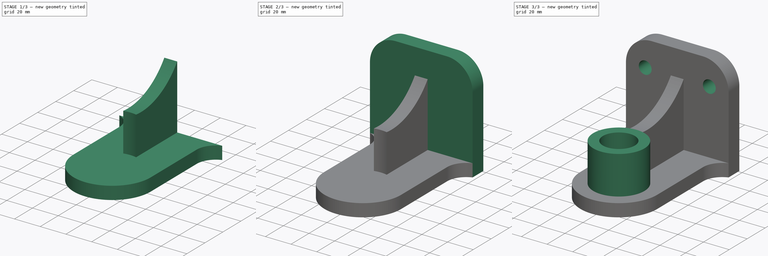
[diagram: build sequence overview — one tinted view per stage of 3, left to right]
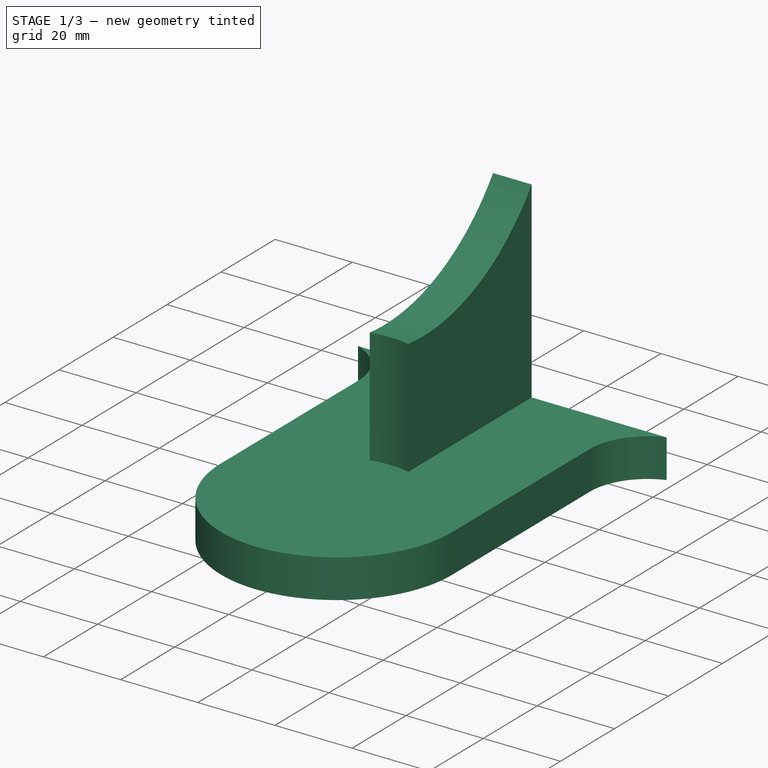
[diagram: stage 1 of 3 — iso view after this stage's code; geometry added in this stage tinted green]
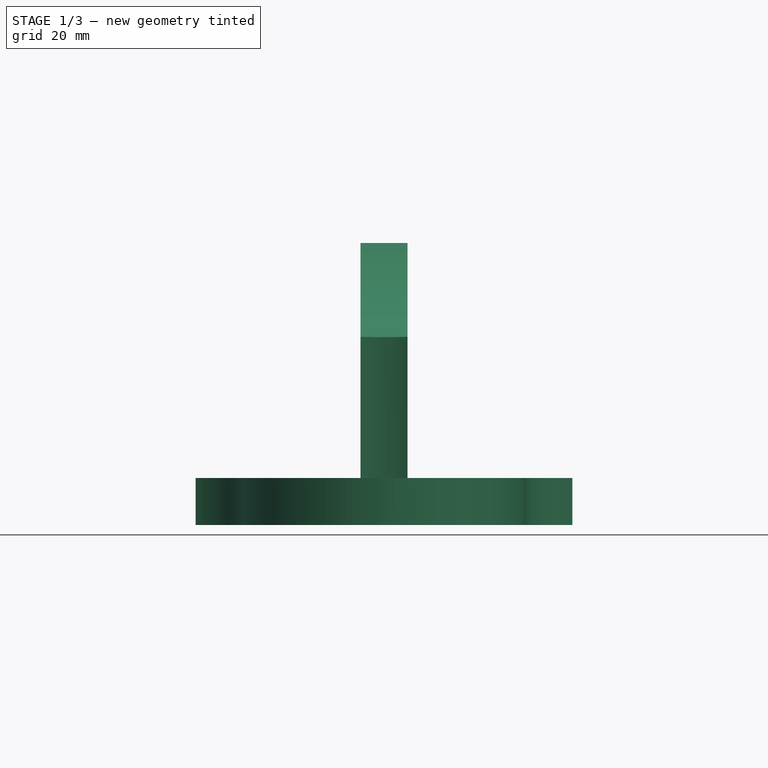
[diagram: stage 1 of 3 — front view after this stage's code; geometry added in this stage tinted green]
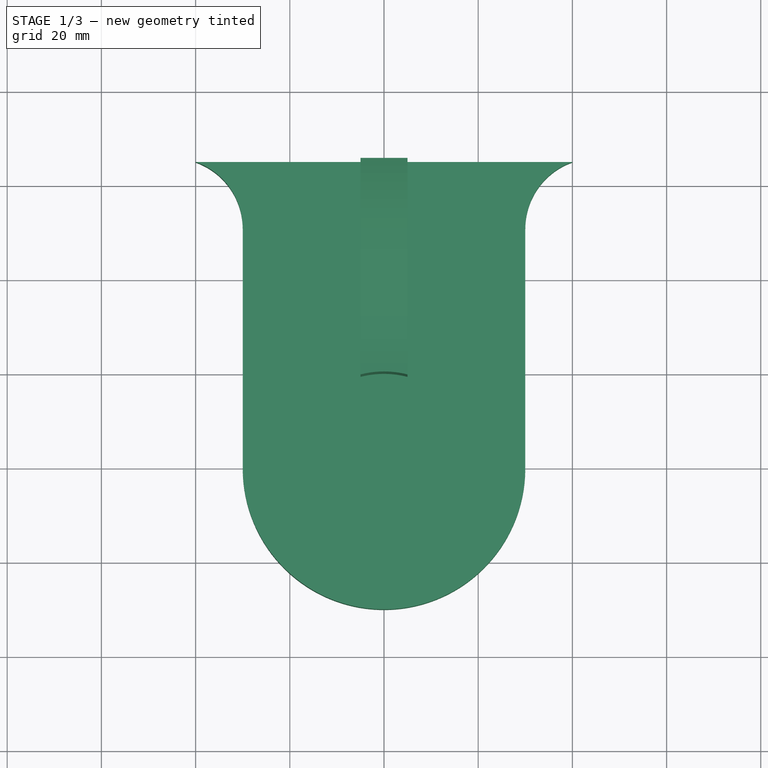
[diagram: stage 1 of 3 — top view after this stage's code; geometry added in this stage tinted green]
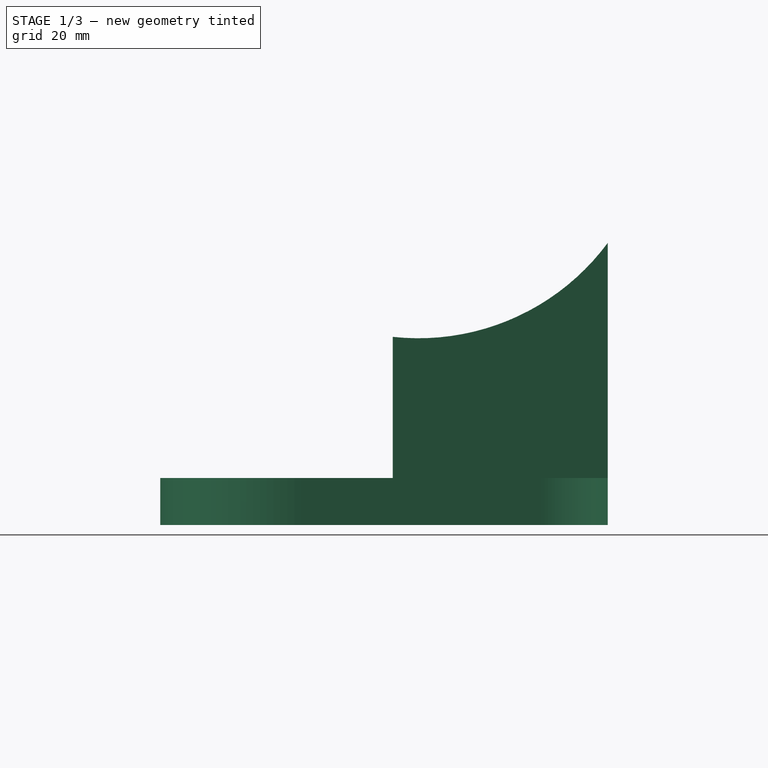
[diagram: stage 1 of 3 — right view after this stage's code; geometry added in this stage tinted green]
FCSTD DOCUMENT  (FreeCAD 0.16R)
Label: Fig 3.25 final
License: All rights reserved
LicenseURL: http://en.wikipedia.org/wiki/All_rights_reserved
objects: Sketcher::SketchObject×5, PartDesign::Pad×4, Part::Feature×2, PartDesign::Fillet×1, Part::Cut×1, Part::MultiFuse×1, PartDesign::Pocket×1
note: 20 computed .brp shape members not serialized (recipe doc carries the construction recipe); baked Part::Feature solids carry a one-line shape summary decoded from their .brp

FEATURE [Sketcher::SketchObject] Sketch
  sketch-geometry (7):
    g0: ArcOfCircle CenterX=0 CenterY=0 CenterZ=0 NormalX=0 NormalY=0 NormalZ=1 Radius=30 StartAngle=3.14159 EndAngle=6.28319
    g1: LineSegment [constr] StartX=0 StartY=0 StartZ=0 EndX=0 EndY=65 EndZ=0
    g2: LineSegment StartX=-40 StartY=65 StartZ=0 EndX=40 EndY=65 EndZ=0
    g3: ArcOfCircle CenterX=-45 CenterY=50.8579 CenterZ=0 NormalX=0 NormalY=0 NormalZ=1 Radius=15 StartAngle=2.339e-09 EndAngle=1.23096
    g4: ArcOfCircle CenterX=45 CenterY=50.8579 CenterZ=0 NormalX=0 NormalY=0 NormalZ=1 Radius=15 StartAngle=1.91063 EndAngle=3.14159
    g5: LineSegment StartX=-30 StartY=0 StartZ=0 EndX=-30 EndY=50.8579 EndZ=0
    g6: LineSegment StartX=30 StartY=0 StartZ=0 EndX=30 EndY=50.8578 EndZ=0
  constraints (23):
    c: Coincident(g0,g-1)
    c: PointOnObject(g0,g-1)
    c: PointOnObject(g0,g-1)
    c: Radius(g0) = 30
    c: Coincident(g1,g-1)
    c: Vertical(g1)
    c: DistanceY(g1,g1) = 65
    c: Horizontal(g2)
    c: DistanceX(g2,g2) = 80
    c: Symmetric(g2,g2,g-2)
    c: PointOnObject(g1,g2)
    c: Coincident(g4,g2)
    c: Radius(g4) = 15
    c: Radius(g3) = 15
    c: Coincident(g2,g3)
    c: Coincident(g5,g0)
    c: Coincident(g6,g0)
    c: Vertical(g6)
    c: Coincident(g4,g6)
    c: Coincident(g3,g5)
    c: Tangent(g5,g3)
    c: Tangent(g0,g5)
    c: Tangent(g6,g4)
FEATURE [PartDesign::Pad] Pad
  Length = 10
  Length2 = 100
  Sketch = -> Sketch
  Type = 0
FEATURE [Sketcher::SketchObject] Sketch003
  Placement = pos=(0,0,0) rot=(0.57735,0.57735,0.57735;2.0944rad)
  sketch-geometry (4):
    g0: LineSegment StartX=65 StartY=59.8961 StartZ=0 EndX=65 EndY=10 EndZ=0
    g1: LineSegment StartX=65 StartY=10 StartZ=0 EndX=19 EndY=10 EndZ=0
    g2: LineSegment StartX=19 StartY=10 StartZ=0 EndX=19 EndY=40 EndZ=0
    g3: ArcOfCircle CenterX=24.8238 CenterY=89.6597 CenterZ=0 NormalX=0 NormalY=0 NormalZ=1 Radius=50 StartAngle=4.59565 EndAngle=5.64558
  constraints (12):
    c: Vertical(g0)
    c: Coincident(g0,g1)
    c: Horizontal(g1)
    c: Coincident(g1,g2)
    c: Vertical(g2)
    c: DistanceX(g-1,g1) = 19
    c: DistanceX(g-1,g0) = 65
    c: DistanceY(g1,g2) = 30
    c: Coincident(g3,g0)
    c: Coincident(g3,g2)
    c: Radius(g3) = 50
    c: DistanceY(g-1,g1) = 10
FEATURE [PartDesign::Pad] Pad003
  Length = 10
  Length2 = 100
  Midplane = true
  Placement = pos=(0,0,0) rot=(0.57735,0.57735,0.57735;2.0944rad)
  Sketch = -> Sketch003
  Type = 0
FEATURE [Part::Feature] Pad002001  label="Pad004"
  shape: bbox 80 x 107 x 80 mm, 18 faces (baked)
FEATURE [Part::Cut] Cut
  Base = -> Pad003
  Tool = -> Pad002001
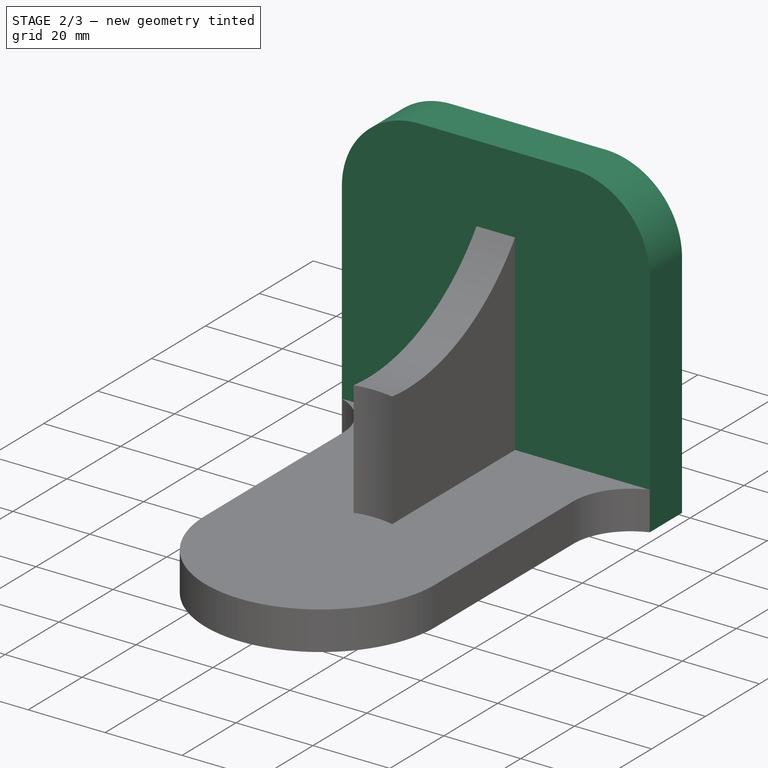
[diagram: stage 2 of 3 — iso view after this stage's code; geometry added in this stage tinted green]
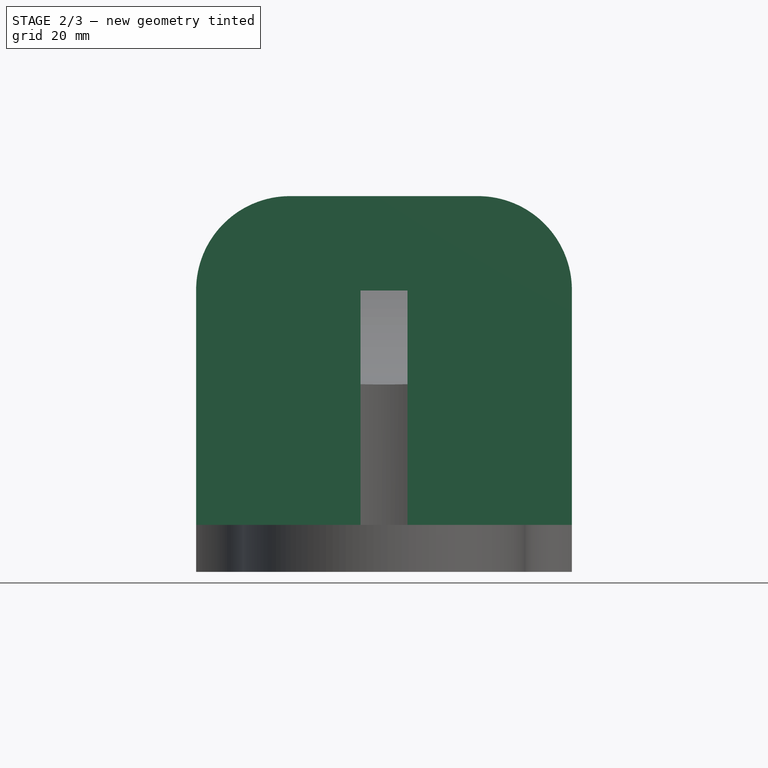
[diagram: stage 2 of 3 — front view after this stage's code; geometry added in this stage tinted green]
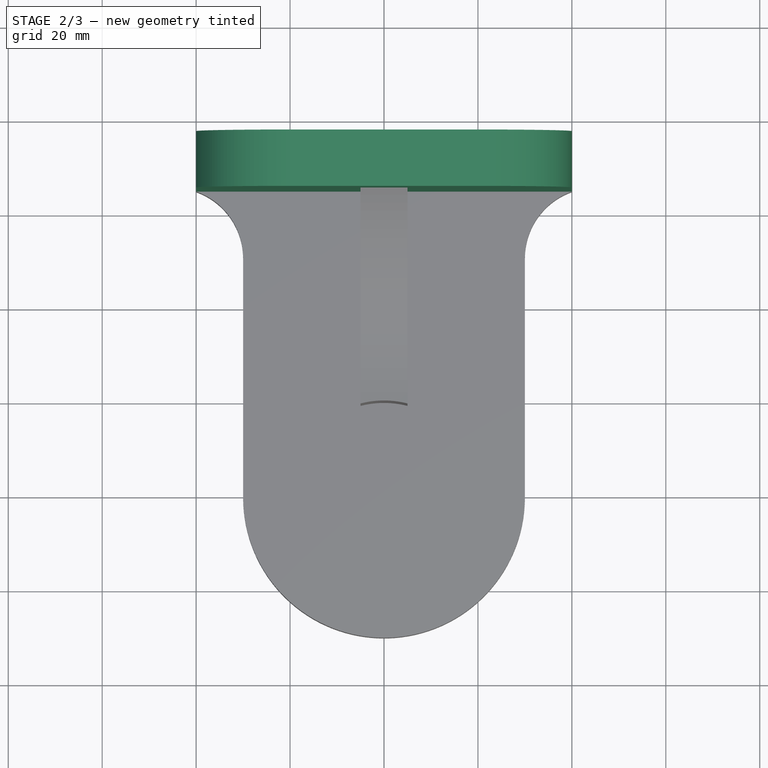
[diagram: stage 2 of 3 — top view after this stage's code; geometry added in this stage tinted green]
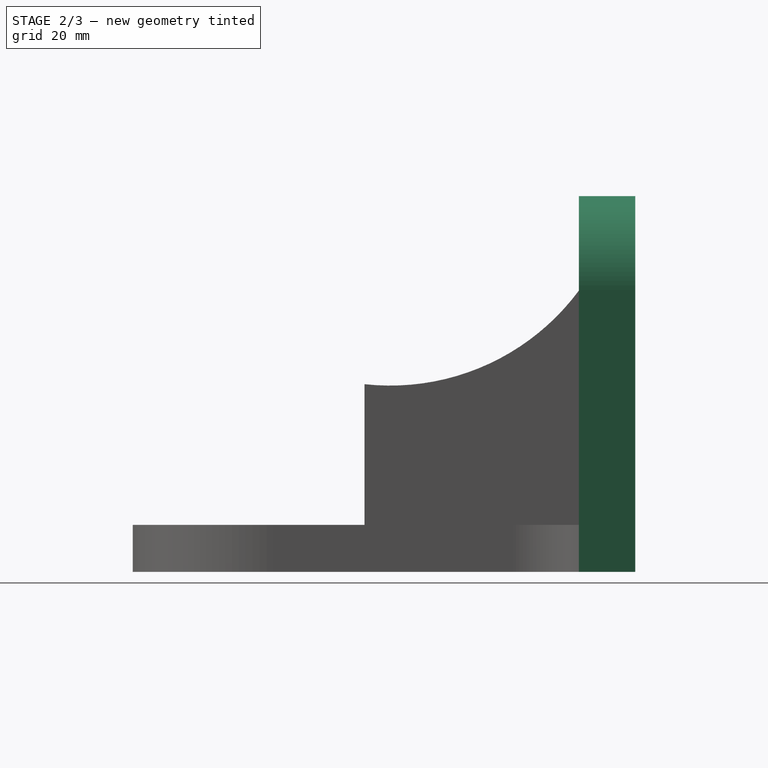
[diagram: stage 2 of 3 — right view after this stage's code; geometry added in this stage tinted green]
FEATURE [Sketcher::SketchObject] Sketch001
  ExternalGeometry = -> [Pad]
  Placement = pos=(0,0,0) rot=(1,0,0;3.14159rad)
  Support = -> Pad [Face7]
  sketch-geometry (4):
    g0: LineSegment StartX=-40 StartY=-77 StartZ=0 EndX=40 EndY=-77 EndZ=0
    g1: LineSegment StartX=40 StartY=-77 StartZ=0 EndX=40 EndY=-65 EndZ=0
    g2: LineSegment StartX=40 StartY=-65 StartZ=0 EndX=-40 EndY=-65 EndZ=0
    g3: LineSegment StartX=-40 StartY=-65 StartZ=0 EndX=-40 EndY=-77 EndZ=0
  constraints (11):
    c: Coincident(g0,g1)
    c: Coincident(g1,g2)
    c: Coincident(g2,g3)
    c: Coincident(g3,g0)
    c: Horizontal(g0)
    c: Horizontal(g2)
    c: Vertical(g1)
    c: Vertical(g3)
    c: Coincident(g2,g-3)
    c: Coincident(g1,g-3)
    c: DistanceY(g1,g1) = 12
FEATURE [PartDesign::Pad] Pad001
  Length = 80
  Length2 = 100
  Reversed = true
  Sketch = -> Sketch001
  Type = 0
FEATURE [PartDesign::Fillet] Fillet
  Base = -> Pad001 [Edge27,Edge19]
  Radius = 20
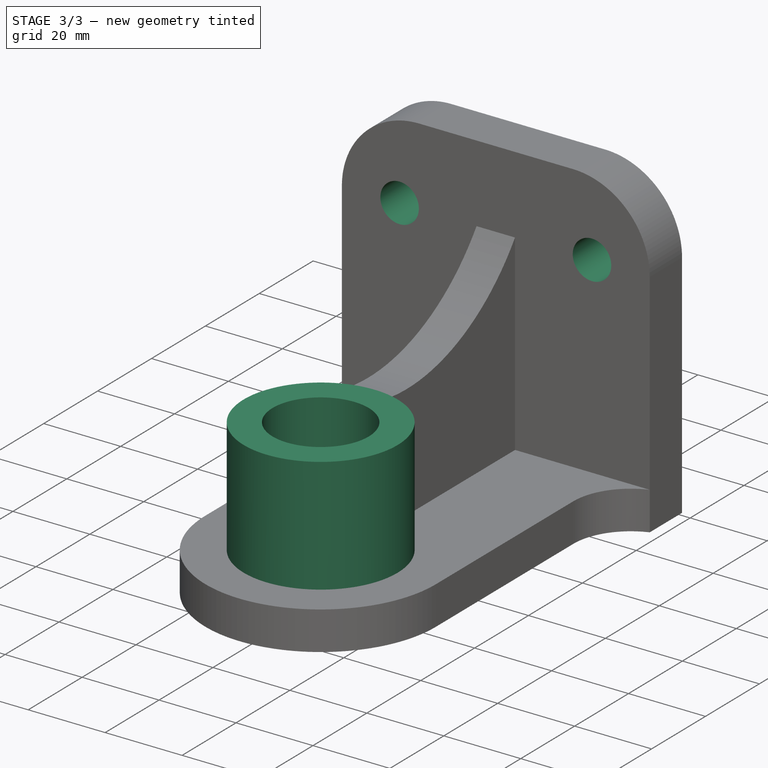
[diagram: stage 3 of 3 — iso view after this stage's code; geometry added in this stage tinted green]
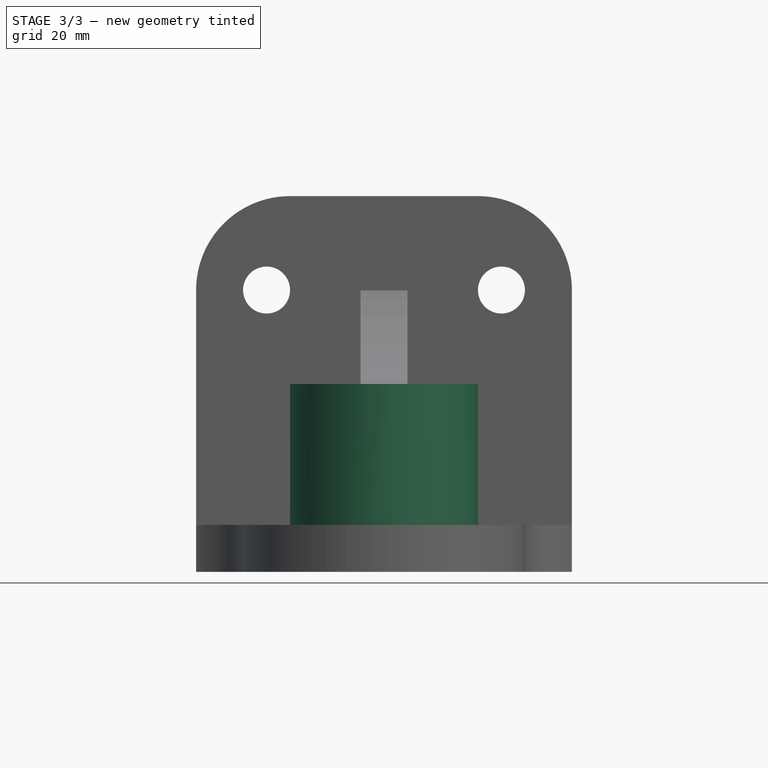
[diagram: stage 3 of 3 — front view after this stage's code; geometry added in this stage tinted green]
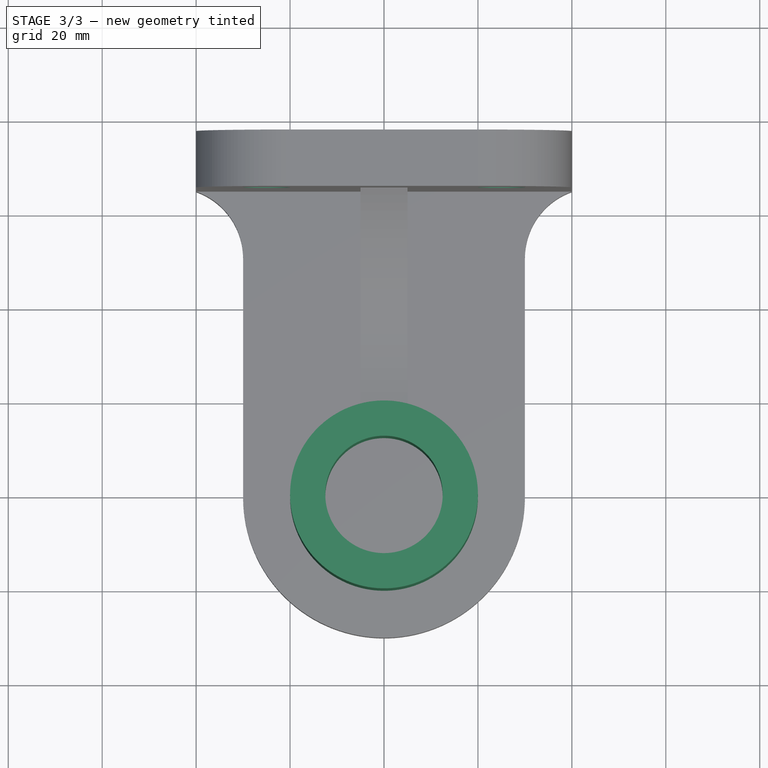
[diagram: stage 3 of 3 — top view after this stage's code; geometry added in this stage tinted green]
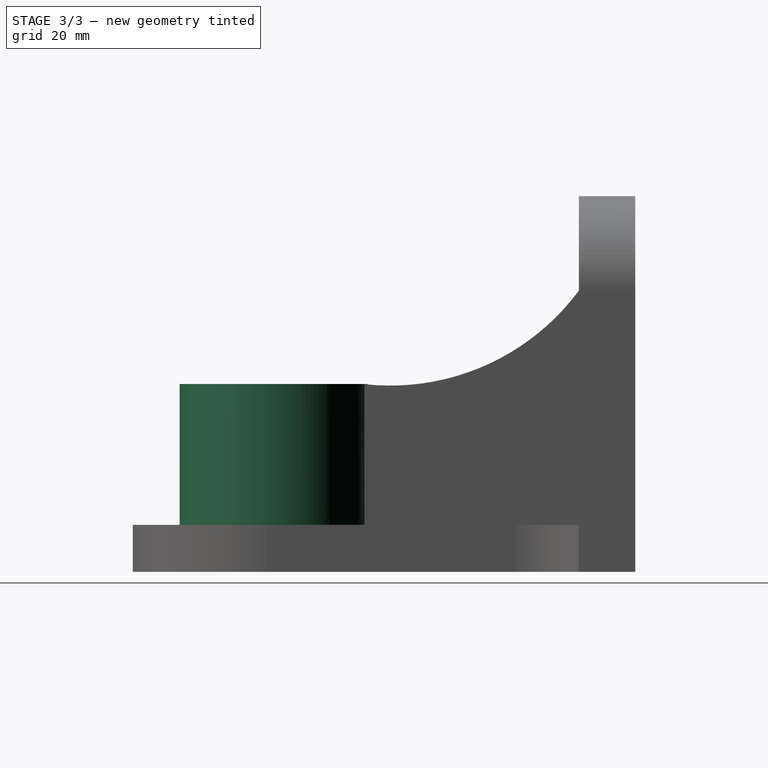
[diagram: stage 3 of 3 — right view after this stage's code; geometry added in this stage tinted green]
FEATURE [Sketcher::SketchObject] Sketch002
  Placement = pos=(0,0,10) rot=(0,0,1;0rad)
  Support = -> Fillet [Face7]
  sketch-geometry (2):
    g0: Circle CenterX=0 CenterY=0 CenterZ=0 NormalX=0 NormalY=0 NormalZ=1 Radius=20
    g1: Circle CenterX=0 CenterY=0 CenterZ=0 NormalX=0 NormalY=0 NormalZ=1 Radius=12.5
  constraints (3):
    c: Coincident(g0,g-1)
    c: Radius(g0) = 20
    c: Radius(g1) = 12.5
FEATURE [PartDesign::Pad] Pad002
  Length = 30
  Length2 = 100
  Sketch = -> Sketch002
  Type = 0
FEATURE [Part::MultiFuse] Fusion
  Shapes = -> [Pad002,Cut]
FEATURE [Sketcher::SketchObject] Sketch004
  ExternalGeometry = -> [Fusion]
  Placement = pos=(0,65,0) rot=(1,0,0;1.5708rad)
  Support = -> Fusion [Face11]
  sketch-geometry (2):
    g0: Circle CenterX=-25 CenterY=60 CenterZ=0 NormalX=0 NormalY=0 NormalZ=1 Radius=5
    g1: Circle CenterX=25 CenterY=60 CenterZ=0 NormalX=0 NormalY=0 NormalZ=1 Radius=5
  constraints (6):
    c: DistanceY(g1,g-3) = 20
    c: DistanceY(g0,g-3) = 20
    c: Symmetric(g0,g1,g-2)
    c: Radius(g1) = 5
    c: Equal(g1,g0)
    c: DistanceX(g0,g1) = 50
FEATURE [PartDesign::Pocket] Pocket
  Length = 5
  Sketch = -> Sketch004
  Type = 1
FEATURE [Part::Feature] Pocket001
  shape: bbox 80 x 107 x 80 mm, 23 faces (baked)
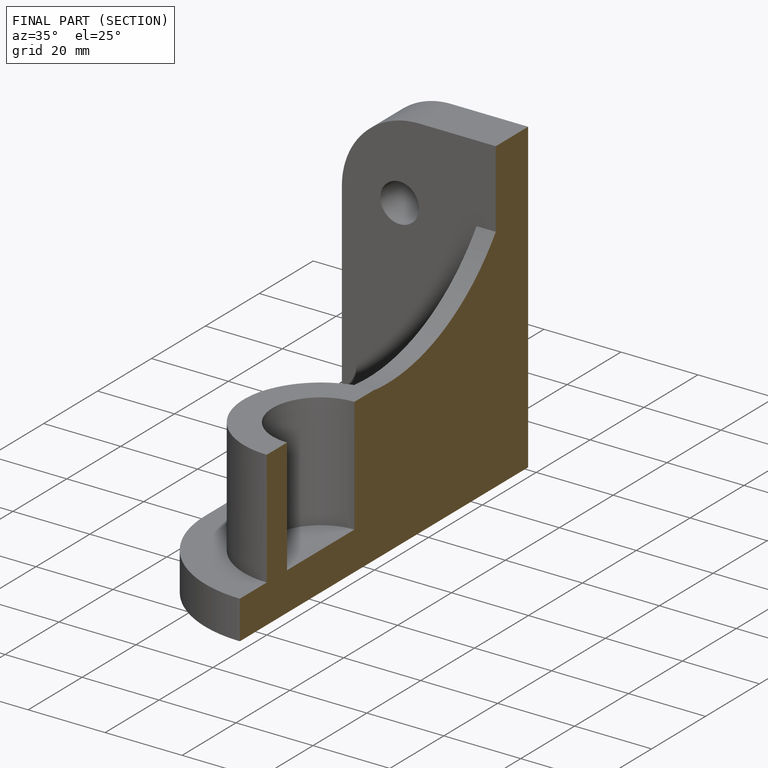
[diagram: finished part — half-section view (interior)]
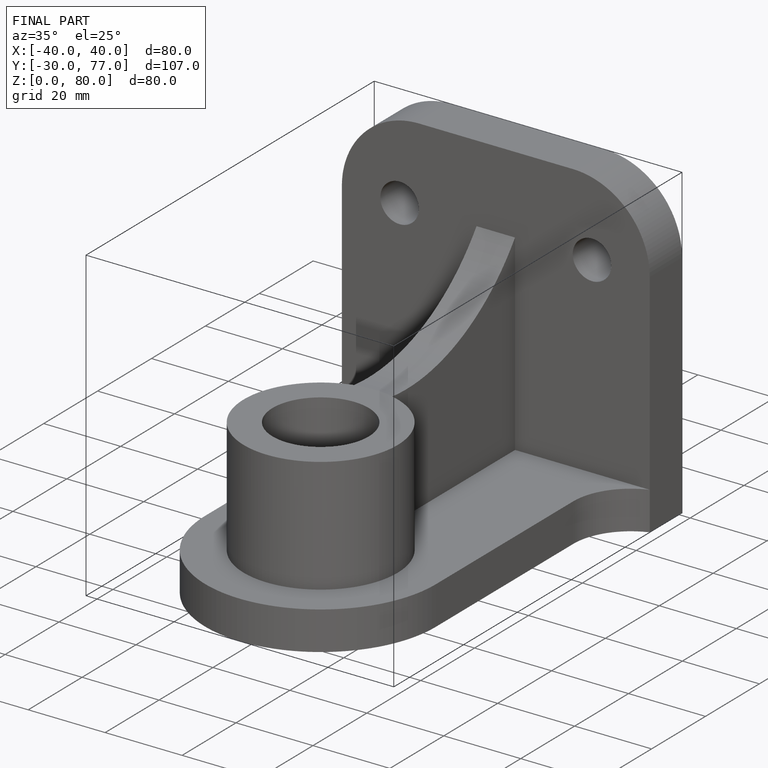
[diagram: finished part — iso view with bounding-box wireframe]
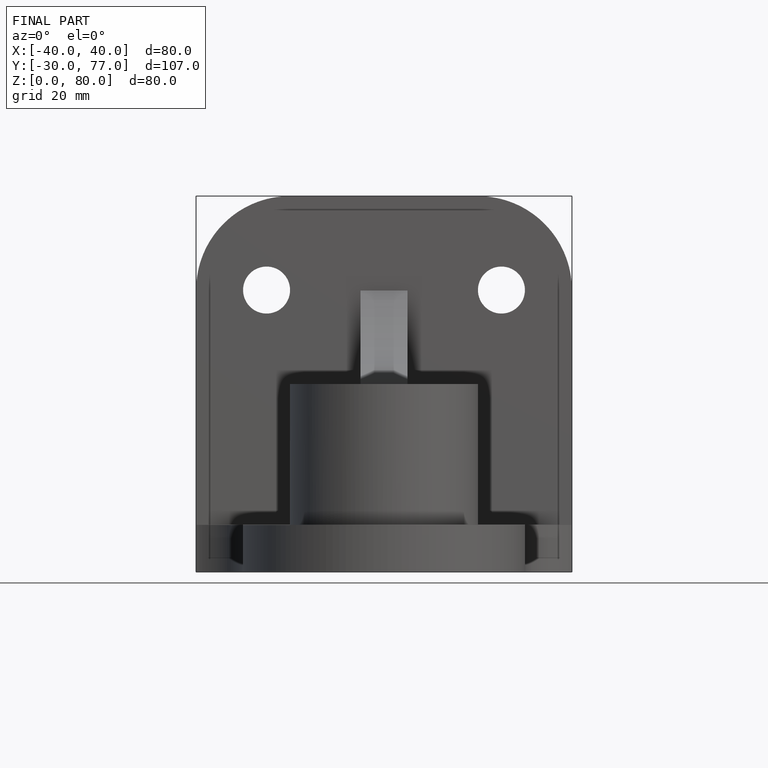
[diagram: finished part — front view with bounding-box wireframe]
